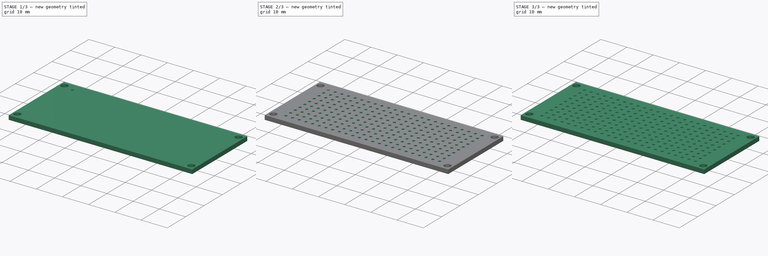
[diagram: build sequence overview — one tinted view per stage of 3, left to right]
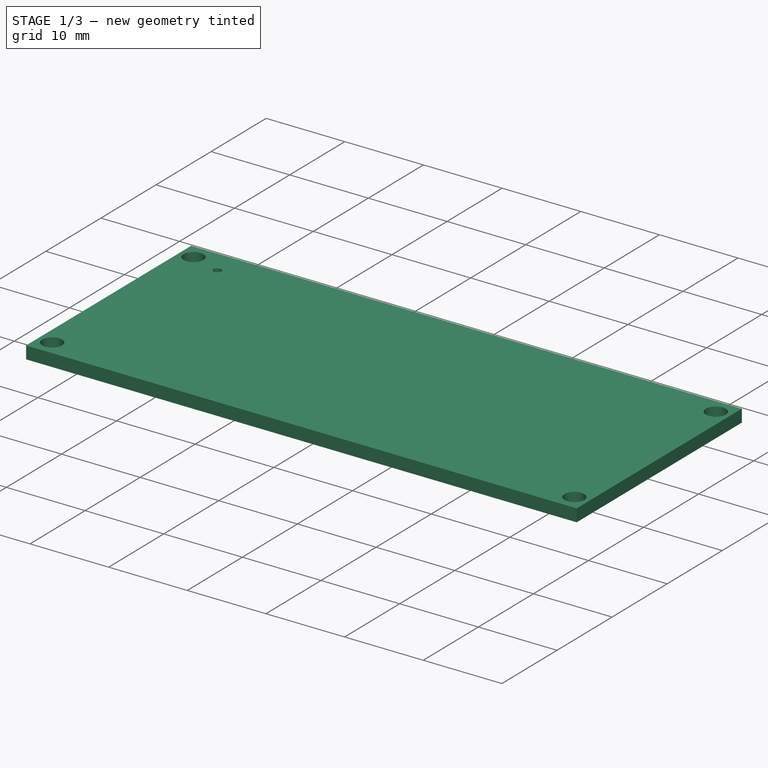
[diagram: stage 1 of 3 — iso view after this stage's code; geometry added in this stage tinted green]
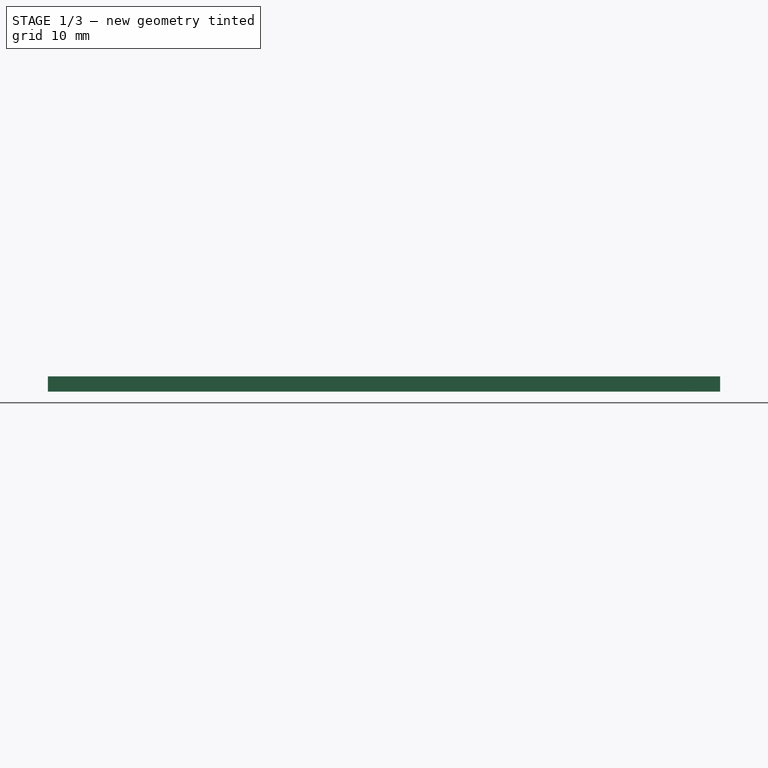
[diagram: stage 1 of 3 — front view after this stage's code; geometry added in this stage tinted green]
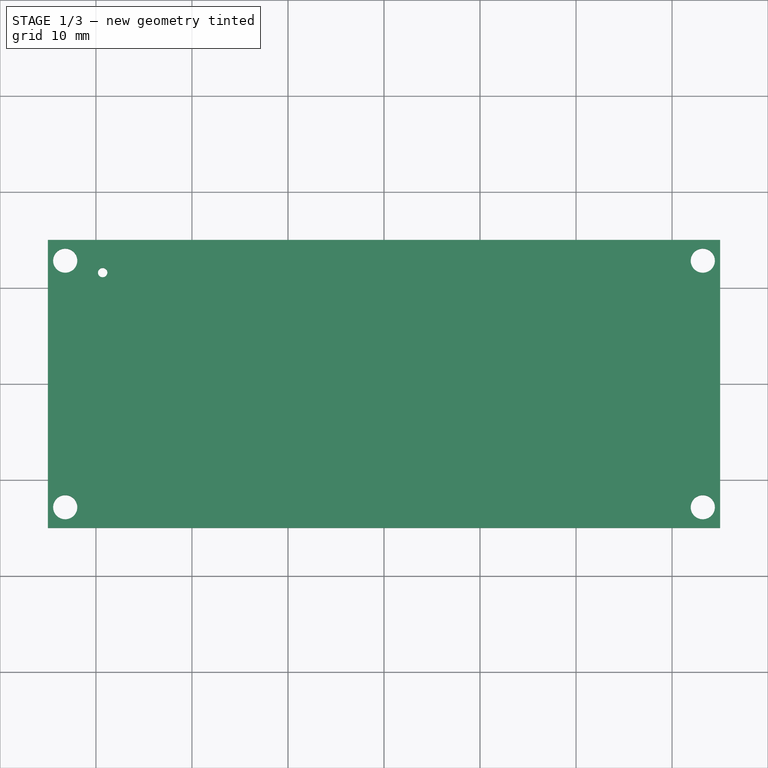
[diagram: stage 1 of 3 — top view after this stage's code; geometry added in this stage tinted green]
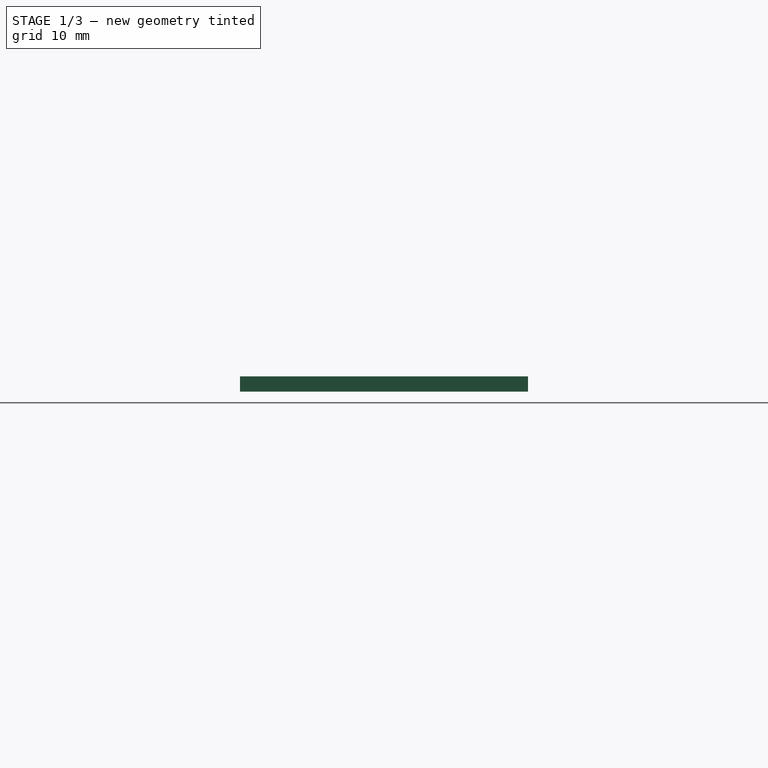
[diagram: stage 1 of 3 — right view after this stage's code; geometry added in this stage tinted green]
FCSTD DOCUMENT  (FreeCAD 0.20R29177 +426 (Git))
Label: 7cm_x_3cm_protoboard
License: Creative Commons Attribution
LicenseURL: http://creativecommons.org/licenses/by/4.0/
objects: Sketcher::SketchObject×3, PartDesign::LinearPattern×3, PartDesign::Pad×2, App::Part×1, PartDesign::Pocket×1, PartDesign::MultiTransform×1, PartDesign::Body×1
note: 14 computed .brp shape members not serialized (recipe doc carries the construction recipe); baked Part::Feature solids carry a one-line shape summary decoded from their .brp

FEATURE [App::Part] Part
  Origin = -> Origin
FEATURE [Sketcher::SketchObject] Sketch
  FullyConstrained = true
  MapMode = 5
  Support = -> [XY_Plane001]
  expr: Constraints[16] = .Constraints.MountHoleX
  expr: Constraints[19] = .Constraints.MountHoleY
  sketch-geometry (8):
    g0: LineSegment StartX=-35 StartY=15 StartZ=0 EndX=35 EndY=15 EndZ=0
    g1: LineSegment StartX=35 StartY=15 StartZ=0 EndX=35 EndY=-15 EndZ=0
    g2: LineSegment StartX=35 StartY=-15 StartZ=0 EndX=-35 EndY=-15 EndZ=0
    g3: LineSegment StartX=-35 StartY=-15 StartZ=0 EndX=-35 EndY=15 EndZ=0
    g4: Circle CenterX=-33.2 CenterY=12.84 CenterZ=0 NormalX=0 NormalY=0 NormalZ=1 AngleXU=0 Radius=1.26
    g5: Circle CenterX=33.2 CenterY=12.84 CenterZ=0 NormalX=0 NormalY=0 NormalZ=1 AngleXU=0 Radius=1.26
    g6: Circle CenterX=-33.2 CenterY=-12.84 CenterZ=0 NormalX=0 NormalY=0 NormalZ=1 AngleXU=0 Radius=1.26
    g7: Circle CenterX=33.2 CenterY=-12.84 CenterZ=0 NormalX=0 NormalY=0 NormalZ=1 AngleXU=0 Radius=1.26
  constraints (20):
    c: Coincident(g0,g1)
    c: Coincident(g1,g2)
    c: Coincident(g2,g3)
    c: Coincident(g3,g0)
    c: Horizontal(g2)
    c: Vertical(g1)
    c: Symmetric(g0,g0,g-2)
    c: Symmetric(g0,g2,g-1)
    c: DistanceY(g3,g3) = 30  'BoardWidth'
    c: DistanceX(g2,g1) = 70  'BoardLength'
    c: Diameter(g4) = 2.52  'MountHole'
    c: Equal(g4,g5)
    c: Equal(g5,g7)
    c: Equal(g7,g6)
    c: DistanceX(g0,g4) = 1.8  'MountHoleX'
    c: Symmetric(g4,g6,g-1)
    c: DistanceX(g5,g0) = 1.8
    c: Symmetric(g5,g7,g-1)
    c: DistanceY(g4,g0) = 2.16  'MountHoleY'
    c: DistanceY(g5,g0) = 2.16
FEATURE [PartDesign::Pad] Pad
  Direction = (0,0,1)
  Length = 1.6
  Length2 = 10
  Profile = -> Sketch
  ReferenceAxis = -> Sketch [N_Axis]
  Type = 0
FEATURE [Sketcher::SketchObject] Sketch001
  ExternalGeometry = -> [Pad]
  FullyConstrained = true
  MapMode = 5
  Placement = pos=(0,0,1.6) rot=(0,0,1;0rad)
  Support = -> [Pad]
  sketch-geometry (1):
    g0: Circle CenterX=-29.3 CenterY=11.6 CenterZ=0 NormalX=0 NormalY=0 NormalZ=1 AngleXU=0 Radius=0.49
  constraints (3):
    c: Radius(g0) = 0.49
    c: DistanceX(g-3,g0) = 5.7  'EdgeOffsetX'
    c: DistanceY(g0,g-3) = 3.4  'EdgeOffsetY'
FEATURE [PartDesign::Pocket] Pocket
  BaseFeature = -> Pad
  Direction = (0,0,-1)
  Length = 5
  Length2 = 5
  Profile = -> Sketch001
  ReferenceAxis = -> Sketch001 [N_Axis]
  Type = 1
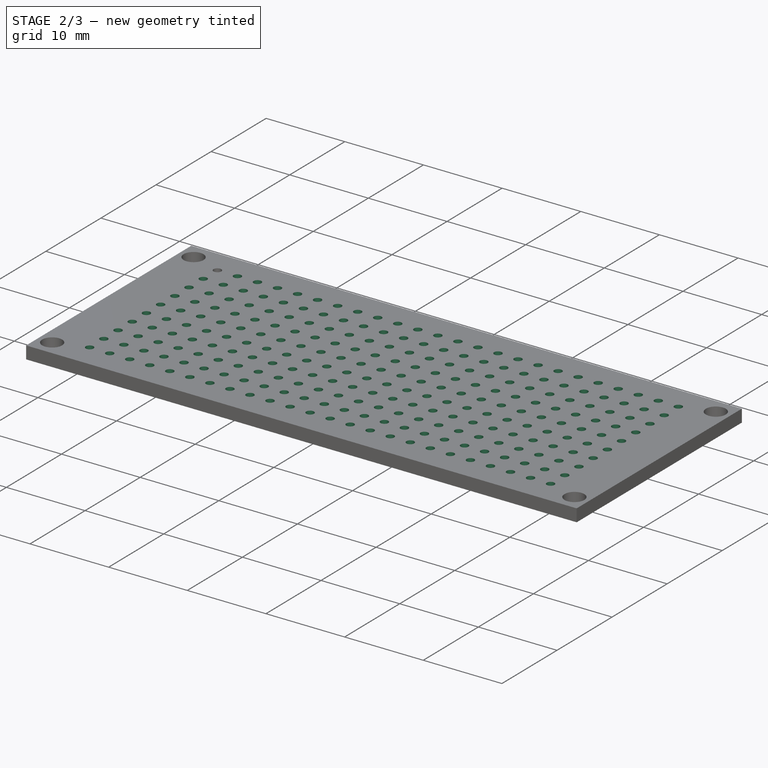
[diagram: stage 2 of 3 — iso view after this stage's code; geometry added in this stage tinted green]
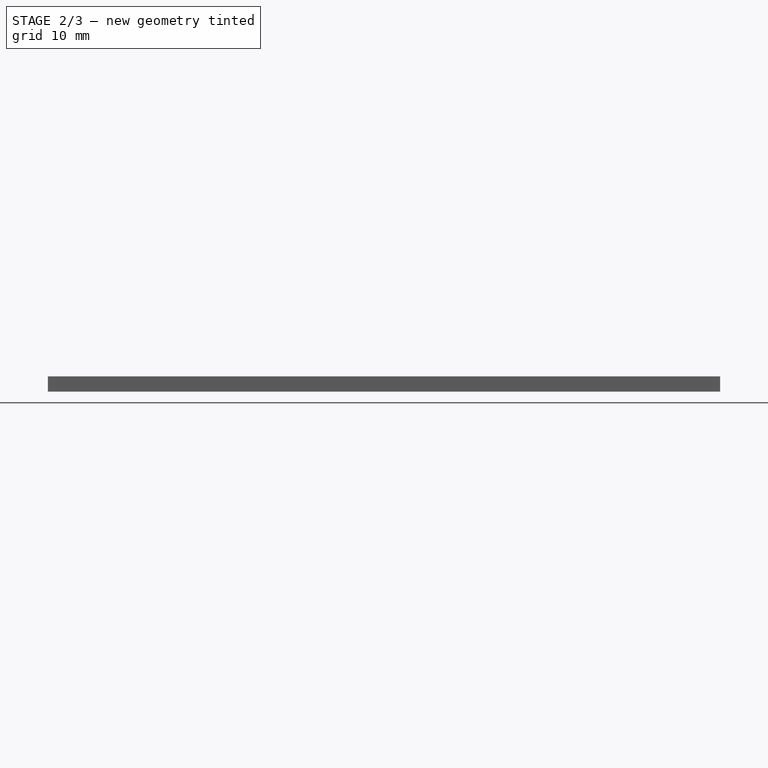
[diagram: stage 2 of 3 — front view after this stage's code; geometry added in this stage tinted green]
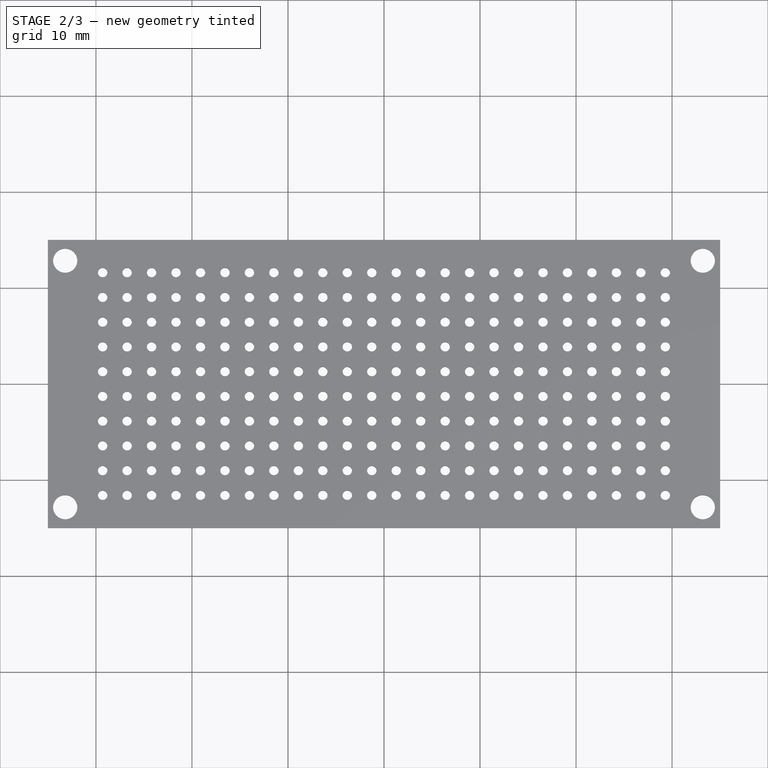
[diagram: stage 2 of 3 — top view after this stage's code; geometry added in this stage tinted green]
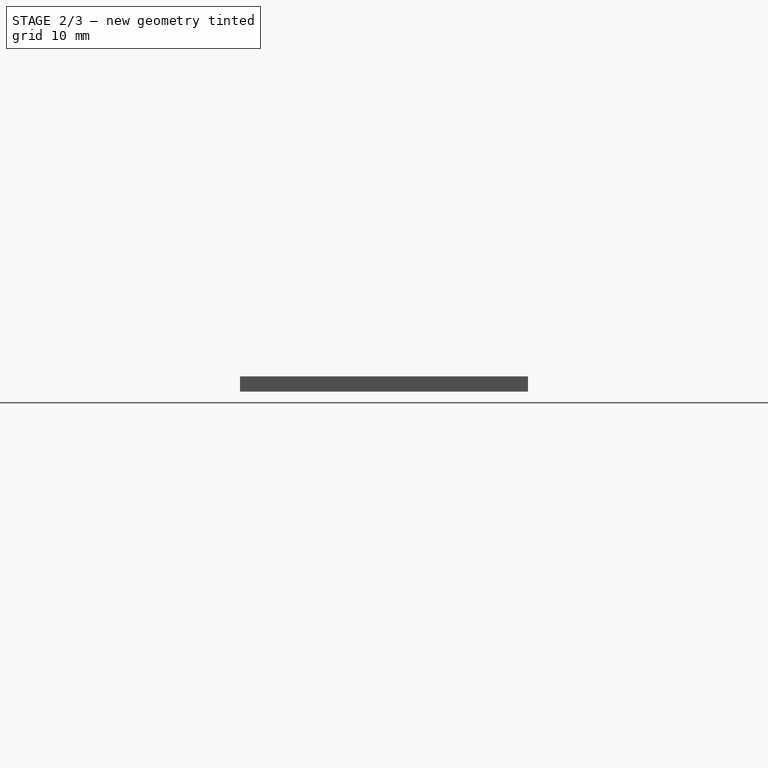
[diagram: stage 2 of 3 — right view after this stage's code; geometry added in this stage tinted green]
FEATURE [PartDesign::LinearPattern] LinearPattern
  Direction = -> Sketch001 [H_Axis]
  Length = 58.6
  Occurrences = 24
  expr: Length = Sketch.Constraints.BoardLength - Sketch001.Constraints.EdgeOffsetX * 2
  expr: Occurrences = (Sketch.Constraints.BoardLength - Sketch001.Constraints.EdgeOffsetX * 2) / 2.45
FEATURE [PartDesign::LinearPattern] LinearPattern001
  Direction = -> Sketch001 [V_Axis]
  Length = 23.2
  Occurrences = 10
  Reversed = true
  expr: Length = Sketch.Constraints.BoardWidth - Sketch001.Constraints.EdgeOffsetY * 2
  expr: Occurrences = (Sketch.Constraints.BoardWidth - Sketch001.Constraints.EdgeOffsetY * 2) / 2.54 + 1mm
FEATURE [PartDesign::MultiTransform] MultiTransform
  BaseFeature = -> Pocket
  Originals = -> [Pocket]
  Transformations = -> [LinearPattern,LinearPattern001]
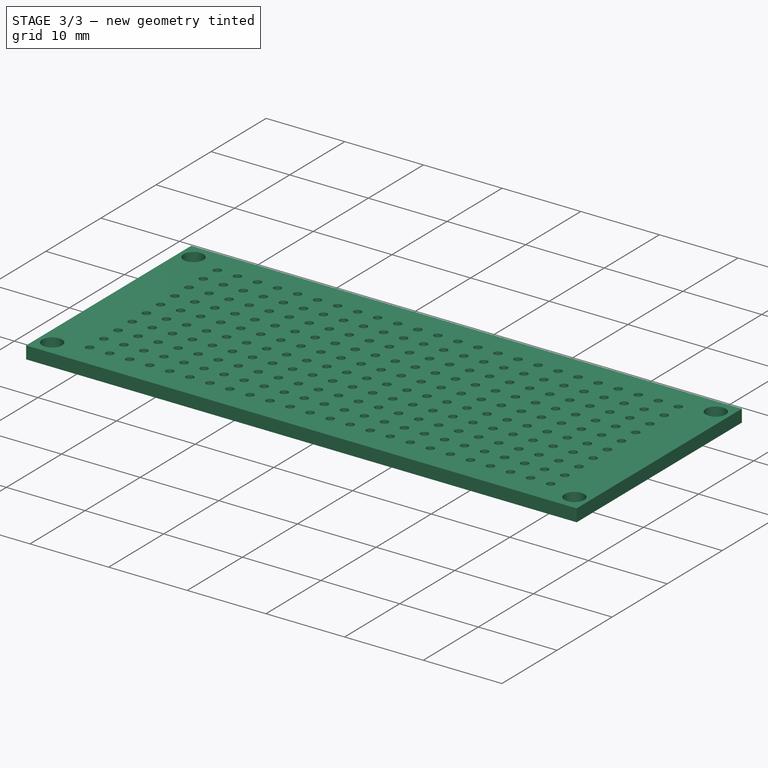
[diagram: stage 3 of 3 — iso view after this stage's code; geometry added in this stage tinted green]
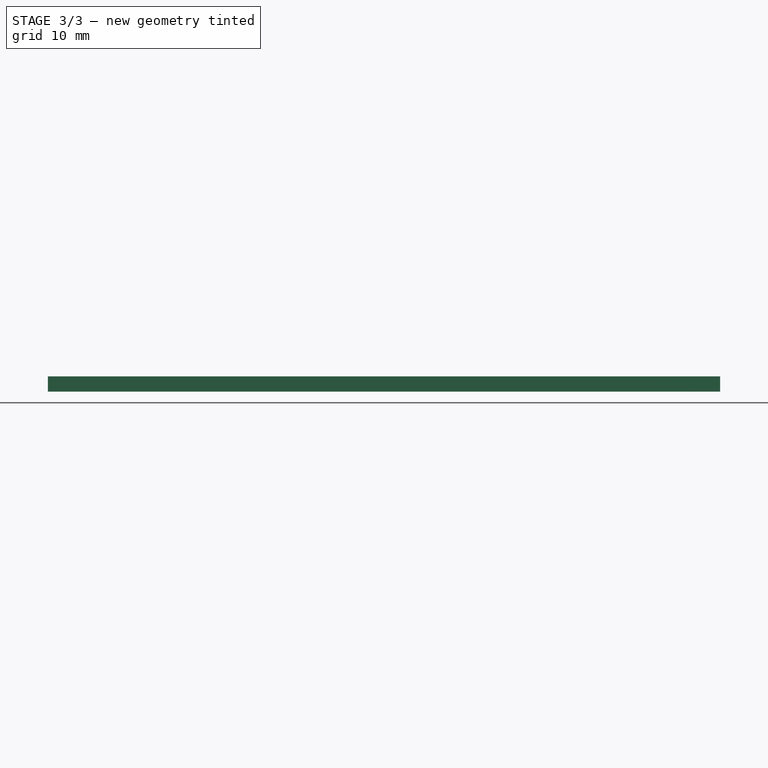
[diagram: stage 3 of 3 — front view after this stage's code; geometry added in this stage tinted green]
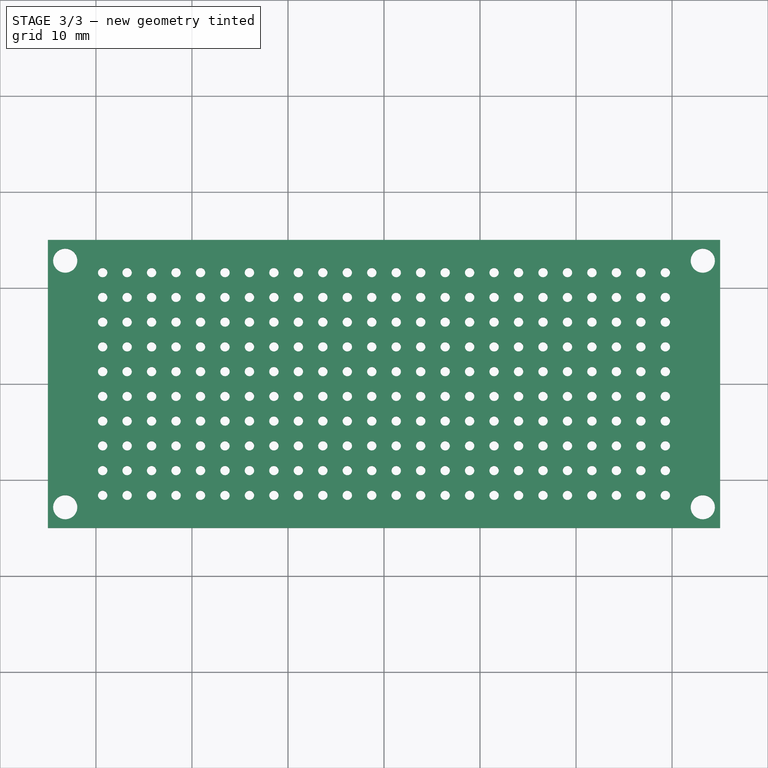
[diagram: stage 3 of 3 — top view after this stage's code; geometry added in this stage tinted green]
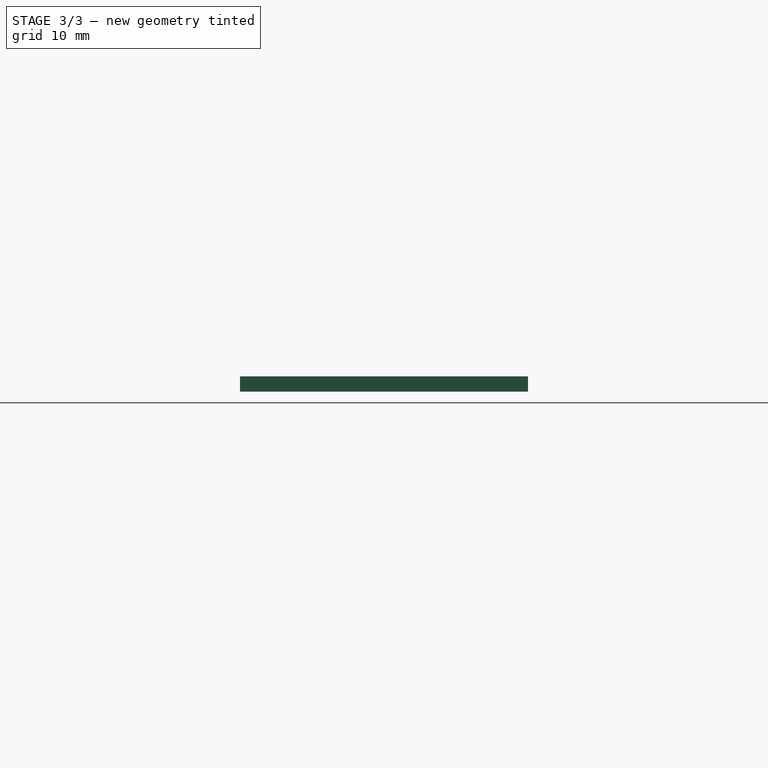
[diagram: stage 3 of 3 — right view after this stage's code; geometry added in this stage tinted green]
FEATURE [Sketcher::SketchObject] Sketch002
  ExternalGeometry = -> [MultiTransform]
  FullyConstrained = true
  MapMode = 5
  Support = -> [XY_Plane001]
  expr: Constraints[16] = .Constraints.PadOffsetY
  expr: Constraints[17] = .Constraints.PadEdgeX
  expr: Constraints[18] = .Constraints.PadX
  expr: Constraints[19] = .Constraints.PadY
  sketch-geometry (8):
    g0: ArcOfCircle CenterX=-33.87 CenterY=9.2 CenterZ=0 NormalX=0 NormalY=0 NormalZ=1 AngleXU=0 Radius=0.9 StartAngle=1.5708 EndAngle=4.71239
    g1: ArcOfCircle CenterX=-31.87 CenterY=9.2 CenterZ=0 NormalX=0 NormalY=0 NormalZ=1 AngleXU=0 Radius=0.9 StartAngle=4.71239 EndAngle=7.85398
    g2: LineSegment StartX=-33.87 StartY=8.3 StartZ=0 EndX=-31.87 EndY=8.3 EndZ=0
    g3: LineSegment StartX=-31.87 StartY=10.1 StartZ=0 EndX=-33.87 EndY=10.1 EndZ=0
    g4: ArcOfCircle CenterX=31.87 CenterY=9.2 CenterZ=0 NormalX=0 NormalY=0 NormalZ=1 AngleXU=0 Radius=0.9 StartAngle=1.5708 EndAngle=4.71239
    g5: ArcOfCircle CenterX=33.87 CenterY=9.2 CenterZ=0 NormalX=0 NormalY=0 NormalZ=1 AngleXU=0 Radius=0.9 StartAngle=4.71239 EndAngle=7.85398
    g6: LineSegment StartX=31.87 StartY=8.3 StartZ=0 EndX=33.87 EndY=8.3 EndZ=0
    g7: LineSegment StartX=33.87 StartY=10.1 StartZ=0 EndX=31.87 EndY=10.1 EndZ=0
  constraints (20):
    c: Tangent(g0,g2) = -1.5708
    c: Tangent(g2,g1) = -1.5708
    c: Tangent(g1,g3) = -1.5708
    c: Tangent(g3,g0) = -1.5708
    c: Equal(g0,g1)
    c: Horizontal(g2)
    c: DistanceY(g0,g0) = 1.8  'PadY'
    c: DistanceX(g0,g1) = 2  'PadX'
    c: DistanceY(g0,g-3) = 5.8  'PadOffsetY'
    c: DistanceX(g-3,g0) = 1.13  'PadEdgeX'
    c: Tangent(g4,g6) = -1.5708
    c: Tangent(g6,g5) = -1.5708
    c: Tangent(g5,g7) = -1.5708
    c: Tangent(g7,g4) = -1.5708
    c: Equal(g4,g5)
    c: Horizontal(g6)
    c: DistanceY(g5,g-4) = 5.8
    c: DistanceX(g5,g-4) = 1.13
    c: DistanceX(g4,g5) = 2
    c: DistanceY(g5,g5) = 1.8
FEATURE [PartDesign::Pad] Pad001
  BaseFeature = -> MultiTransform
  Direction = (0,0,1)
  Length = 1.6
  Length2 = 10
  Profile = -> Sketch002
  ReferenceAxis = -> Sketch002 [N_Axis]
  Type = 0
  expr: Length = Pad.Length
FEATURE [PartDesign::LinearPattern] LinearPattern002
  BaseFeature = -> Pad001
  Direction = -> Sketch002 [V_Axis]
  Length = 18.4
  Occurrences = 8
  Originals = -> [Pad001]
  Reversed = true
  expr: Length = Sketch.Constraints.BoardWidth - Sketch002.Constraints.PadOffsetY * 2
  expr: Occurrences = (Sketch.Constraints.BoardWidth - Sketch002.Constraints.PadOffsetY * 2) / 2.4mm
FEATURE [PartDesign::Body] Body
  Group = -> [Sketch,Pad,Sketch001,Pocket,MultiTransform,LinearPattern,LinearPattern001,Sketch002,Pad001,LinearPattern002]
  Origin = -> Origin001
  Tip = -> LinearPattern002
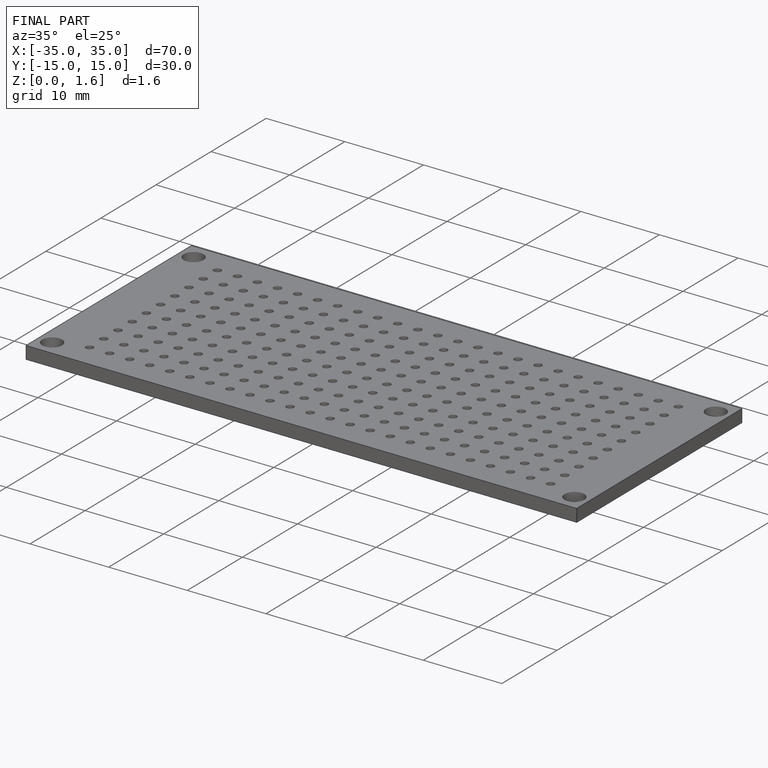
[diagram: finished part — iso view with bounding-box wireframe]
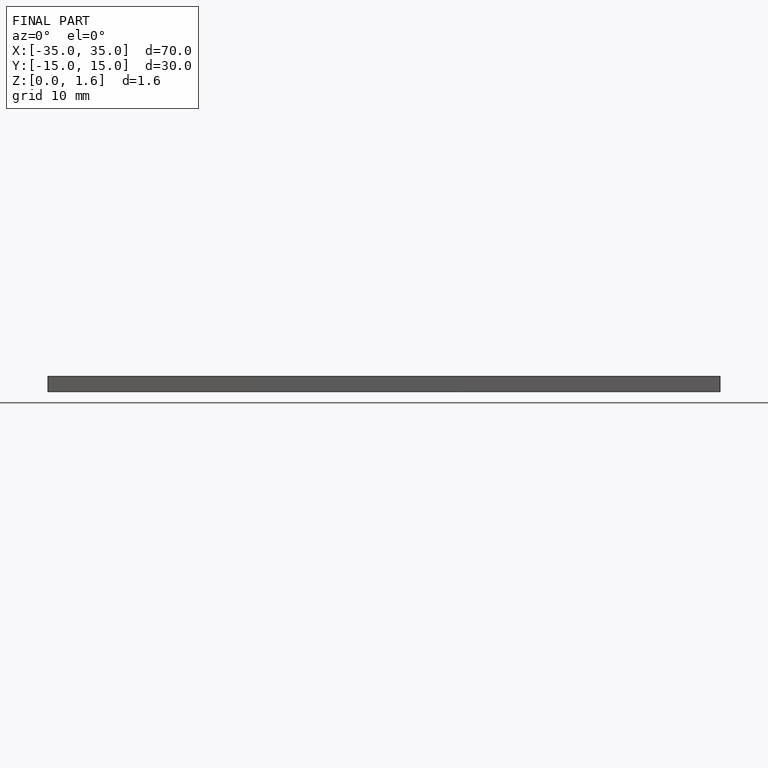
[diagram: finished part — front view with bounding-box wireframe]
